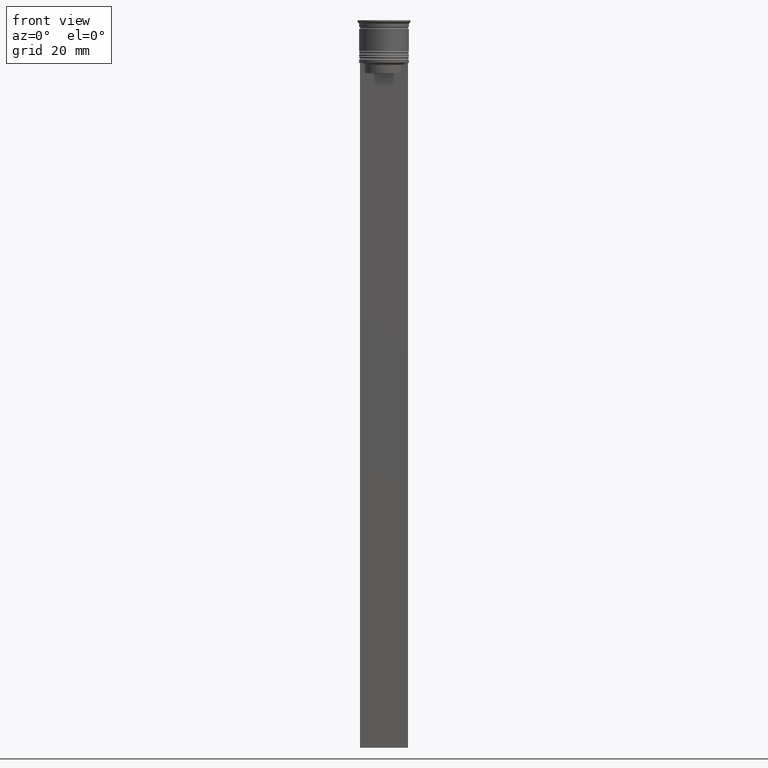
[diagram: clean part render]
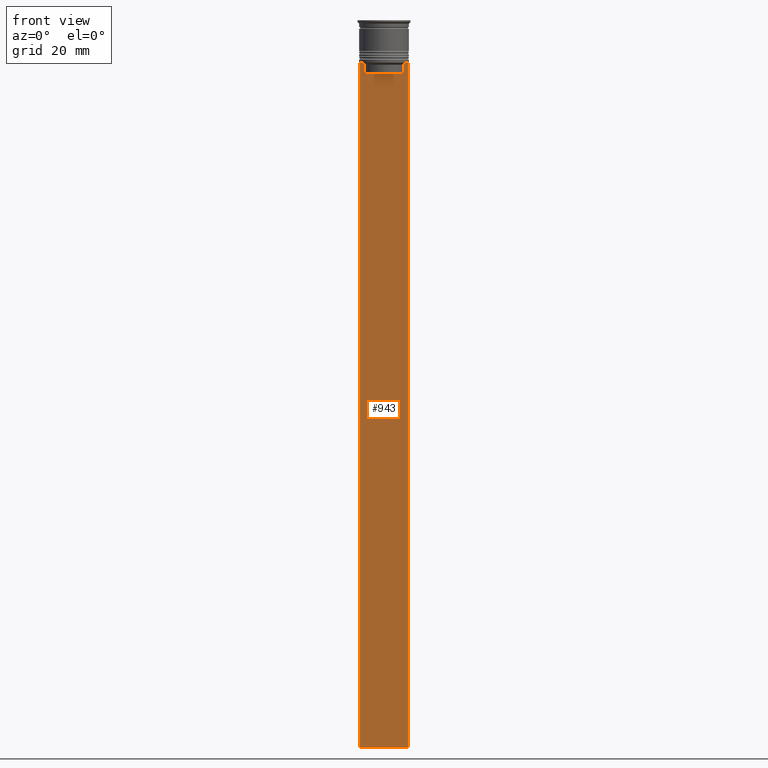
[diagram: same view with one face highlighted and labeled with its STEP entity id]
A machine part, front view. The second image highlights one B-rep face of the part: STEP entity #943.
In plain terms, the highlighted planar face has unit normal (0, -1, -0).
Its self-contained STEP definition (entity closure, byte-faithful):
#46 = CARTESIAN_POINT ( 'NONE',  ( 7.000000000000012434, -0.5000000000000022204, -12.50000000000000000 ) ) ;
#64 = VERTEX_POINT ( 'NONE', #46 ) ;
#78 = LINE ( 'NONE', #800, #1184 ) ;
#111 = EDGE_LOOP ( 'NONE', ( #1652, #1392, #1814, #1152, #1834, #742, #455, #407, #2073, #1907 ) ) ;
#169 = VECTOR ( 'NONE', #617, 1000.000000000000000 ) ;
#206 = VECTOR ( 'NONE', #1089, 1000.000000000000000 ) ;
#257 = VERTEX_POINT ( 'NONE', #1557 ) ;
#282 = VECTOR ( 'NONE', #2317, 1000.000000000000000 ) ;
#306 = CARTESIAN_POINT ( 'NONE',  ( -5.627832620112292794, -0.5000000000000022204, -13.00000000000000000 ) ) ;
#375 = CARTESIAN_POINT ( 'NONE',  ( 5.627832620112292794, -0.5000000000000022204, -15.50000000000000000 ) ) ;
#388 = VERTEX_POINT ( 'NONE', #1101 ) ;
#401 = CARTESIAN_POINT ( 'NONE',  ( 7.000000000000012434, -0.5000000000000022204, -212.5000000000000284 ) ) ;
#407 = ORIENTED_EDGE ( 'NONE', *, *, #929, .F. ) ;
#411 = LINE ( 'NONE', #401, #2222 ) ;
#417 = VERTEX_POINT ( 'NONE', #717 ) ;
#436 = DIRECTION ( 'NONE',  ( -1.000000000000000000, 0.000000000000000000, 0.000000000000000000 ) ) ;
#455 = ORIENTED_EDGE ( 'NONE', *, *, #1066, .F. ) ;
#518 = EDGE_CURVE ( 'NONE', #1132, #1662, #1501, .T. ) ;
#520 = EDGE_CURVE ( 'NONE', #1662, #819, #78, .T. ) ;
#521 = LINE ( 'NONE', #1271, #1843 ) ;
#532 = VERTEX_POINT ( 'NONE', #2253 ) ;
#539 = CARTESIAN_POINT ( 'NONE',  ( -5.627832620112292794, -0.5000000000000022204, -15.50000000000000000 ) ) ;
#551 = EDGE_CURVE ( 'NONE', #1573, #64, #784, .T. ) ;
#613 = CARTESIAN_POINT ( 'NONE',  ( 5.795128760752288777, -0.5000000000000022204, -12.83336023406855375 ) ) ;
#617 = DIRECTION ( 'NONE',  ( 1.000000000000000000, 0.000000000000000000, 0.000000000000000000 ) ) ;
#625 = B_SPLINE_CURVE_WITH_KNOTS ( 'NONE', 3,
 ( #2267, #613, #1482, #2218 ),
 .UNSPECIFIED., .F., .F.,
 ( 4, 4 ),
 ( 0.02651134470867370918, 0.02721991123504334531 ),
 .UNSPECIFIED. ) ;
#717 = CARTESIAN_POINT ( 'NONE',  ( -6.999999999999987566, -0.5000000000000022204, -212.5000000000000284 ) ) ;
#742 = ORIENTED_EDGE ( 'NONE', *, *, #551, .F. ) ;
#752 = CARTESIAN_POINT ( 'NONE',  ( -5.627832620112292794, -0.5000000000000022204, 0.000000000000000000 ) ) ;
#759 = VECTOR ( 'NONE', #1202, 1000.000000000000000 ) ;
#773 = EDGE_CURVE ( 'NONE', #388, #417, #1002, .T. ) ;
#782 = DIRECTION ( 'NONE',  ( 0.000000000000000000, 0.000000000000000000, -1.000000000000000000 ) ) ;
#784 = LINE ( 'NONE', #1916, #169 ) ;
#800 = CARTESIAN_POINT ( 'NONE',  ( 0.000000000000000000, -0.5000000000000022204, -15.50000000000000000 ) ) ;
#819 = VERTEX_POINT ( 'NONE', #375 ) ;
#929 = EDGE_CURVE ( 'NONE', #819, #1361, #521, .T. ) ;
#943 = ADVANCED_FACE ( 'NONE', ( #1631 ), #1445, .T. ) ;
#972 = EDGE_CURVE ( 'NONE', #532, #417, #411, .T. ) ;
#1002 = LINE ( 'NONE', #1555, #759 ) ;
#1051 = CARTESIAN_POINT ( 'NONE',  ( 6.129641098791995368, -0.5000000000000022204, -12.50000000000000000 ) ) ;
#1066 = EDGE_CURVE ( 'NONE', #1361, #1573, #625, .T. ) ;
#1073 = CARTESIAN_POINT ( 'NONE',  ( -5.962396146966409738, -0.5000000000000022204, -12.66669130573587054 ) ) ;
#1083 = DIRECTION ( 'NONE',  ( -0.000000000000000000, -0.000000000000000000, 1.000000000000000000 ) ) ;
#1089 = DIRECTION ( 'NONE',  ( 0.000000000000000000, 0.000000000000000000, -1.000000000000000000 ) ) ;
#1101 = CARTESIAN_POINT ( 'NONE',  ( -6.999999999999987566, -0.5000000000000022204, -12.50000000000000000 ) ) ;
#1132 = VERTEX_POINT ( 'NONE', #306 ) ;
#1137 = DIRECTION ( 'NONE',  ( 0.000000000000000000, -1.000000000000000000, -0.000000000000000000 ) ) ;
#1152 = ORIENTED_EDGE ( 'NONE', *, *, #972, .F. ) ;
#1184 = VECTOR ( 'NONE', #2071, 1000.000000000000000 ) ;
#1202 = DIRECTION ( 'NONE',  ( 0.000000000000000000, 0.000000000000000000, -1.000000000000000000 ) ) ;
#1266 = EDGE_CURVE ( 'NONE', #64, #532, #1981, .T. ) ;
#1271 = CARTESIAN_POINT ( 'NONE',  ( 5.627832620112292794, -0.5000000000000022204, 0.000000000000000000 ) ) ;
#1284 = CARTESIAN_POINT ( 'NONE',  ( 5.627832620112292794, -0.5000000000000022204, -13.00000000000000000 ) ) ;
#1361 = VERTEX_POINT ( 'NONE', #1284 ) ;
#1392 = ORIENTED_EDGE ( 'NONE', *, *, #1599, .F. ) ;
#1445 = PLANE ( 'NONE',  #2039 ) ;
#1482 = CARTESIAN_POINT ( 'NONE',  ( 5.962396079681182570, -0.5000000000000022204, -12.66669137279835766 ) ) ;
#1485 = CARTESIAN_POINT ( 'NONE',  ( -5.795128834036803234, -0.5000000000000022204, -12.83336016107156574 ) ) ;
#1501 = LINE ( 'NONE', #752, #1766 ) ;
#1555 = CARTESIAN_POINT ( 'NONE',  ( -6.999999999999987566, -0.5000000000000022204, 1.535668847618198329 ) ) ;
#1557 = CARTESIAN_POINT ( 'NONE',  ( -6.129641098791995368, -0.5000000000000022204, -12.50000000000000000 ) ) ;
#1573 = VERTEX_POINT ( 'NONE', #1051 ) ;
#1587 = CARTESIAN_POINT ( 'NONE',  ( 7.000000000000012434, -0.5000000000000022204, -12.50000000000000000 ) ) ;
#1599 = EDGE_CURVE ( 'NONE', #388, #257, #2162, .T. ) ;
#1631 = FACE_OUTER_BOUND ( 'NONE', #111, .T. ) ;
#1637 = EDGE_CURVE ( 'NONE', #257, #1132, #1698, .T. ) ;
#1652 = ORIENTED_EDGE ( 'NONE', *, *, #1637, .F. ) ;
#1662 = VERTEX_POINT ( 'NONE', #539 ) ;
#1698 = B_SPLINE_CURVE_WITH_KNOTS ( 'NONE', 3,
 ( #2051, #1073, #1485, #2211 ),
 .UNSPECIFIED., .F., .F.,
 ( 4, 4 ),
 ( 0.01045365750109871796, 0.01116204421161398619 ),
 .UNSPECIFIED. ) ;
#1766 = VECTOR ( 'NONE', #2243, 1000.000000000000000 ) ;
#1814 = ORIENTED_EDGE ( 'NONE', *, *, #773, .T. ) ;
#1834 = ORIENTED_EDGE ( 'NONE', *, *, #1266, .F. ) ;
#1843 = VECTOR ( 'NONE', #1083, 1000.000000000000000 ) ;
#1907 = ORIENTED_EDGE ( 'NONE', *, *, #518, .F. ) ;
#1916 = CARTESIAN_POINT ( 'NONE',  ( 7.000000000000012434, -0.5000000000000022204, -12.50000000000000000 ) ) ;
#1981 = LINE ( 'NONE', #2054, #206 ) ;
#2039 = AXIS2_PLACEMENT_3D ( 'NONE', #2184, #1137, #782 ) ;
#2051 = CARTESIAN_POINT ( 'NONE',  ( -6.129641098791995368, -0.5000000000000022204, -12.50000000000000000 ) ) ;
#2054 = CARTESIAN_POINT ( 'NONE',  ( 7.000000000000012434, -0.5000000000000022204, 1.535668847618198329 ) ) ;
#2071 = DIRECTION ( 'NONE',  ( 1.000000000000000000, 0.000000000000000000, 0.000000000000000000 ) ) ;
#2073 = ORIENTED_EDGE ( 'NONE', *, *, #520, .F. ) ;
#2162 = LINE ( 'NONE', #1587, #282 ) ;
#2184 = CARTESIAN_POINT ( 'NONE',  ( 7.000000000000012434, -0.5000000000000022204, 1.535668847618198329 ) ) ;
#2211 = CARTESIAN_POINT ( 'NONE',  ( -5.627832620112292794, -0.5000000000000022204, -13.00000000000000000 ) ) ;
#2218 = CARTESIAN_POINT ( 'NONE',  ( 6.129641098791995368, -0.5000000000000022204, -12.50000000000000000 ) ) ;
#2222 = VECTOR ( 'NONE', #436, 1000.000000000000000 ) ;
#2243 = DIRECTION ( 'NONE',  ( 0.000000000000000000, 0.000000000000000000, -1.000000000000000000 ) ) ;
#2253 = CARTESIAN_POINT ( 'NONE',  ( 7.000000000000012434, -0.5000000000000022204, -212.5000000000000284 ) ) ;
#2267 = CARTESIAN_POINT ( 'NONE',  ( 5.627832620112292794, -0.5000000000000022204, -13.00000000000000000 ) ) ;
#2317 = DIRECTION ( 'NONE',  ( 1.000000000000000000, 0.000000000000000000, 0.000000000000000000 ) ) ;